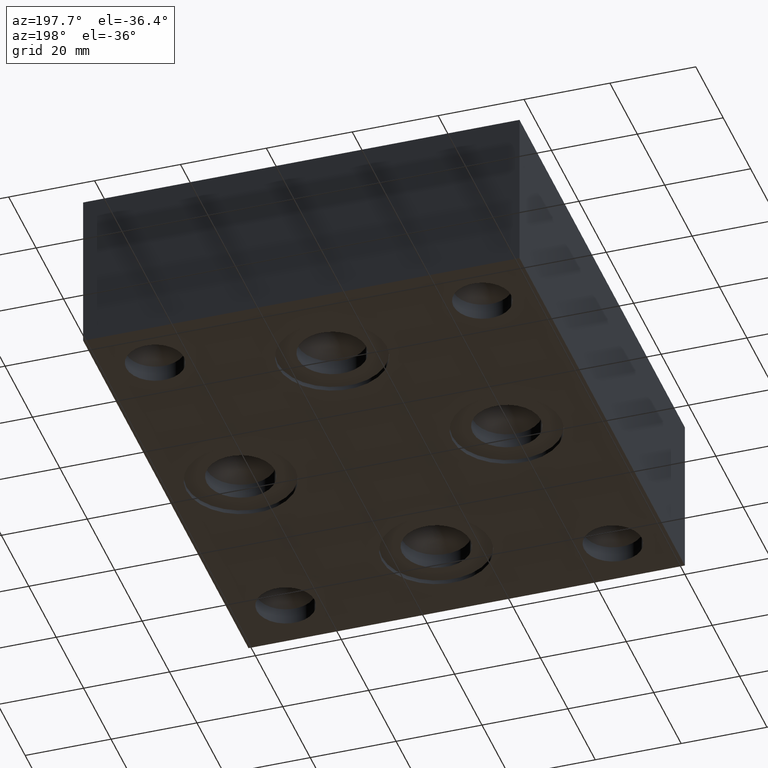
[diagram: clean part render]
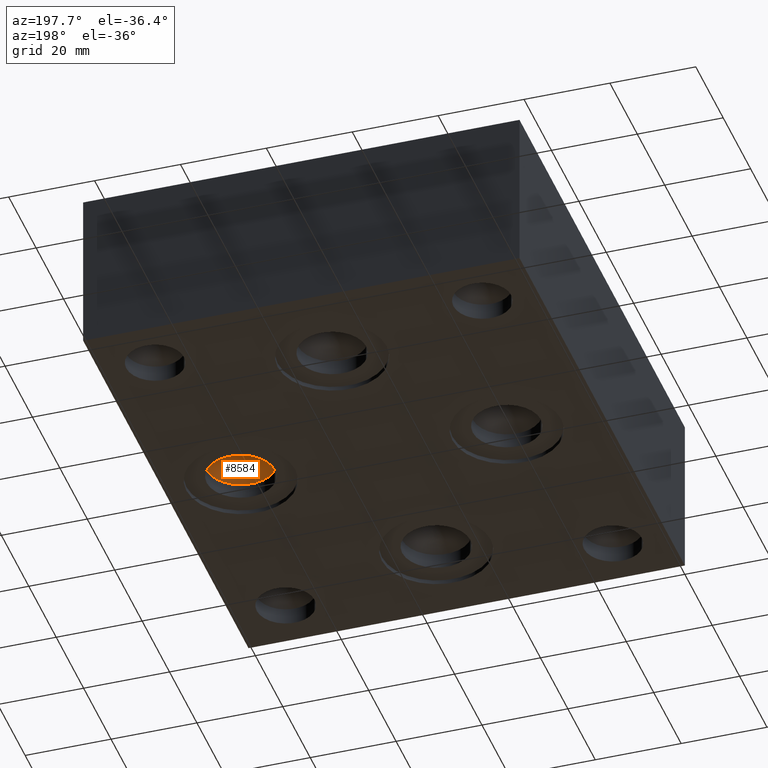
[diagram: same view with one face highlighted and labeled with its STEP entity id]
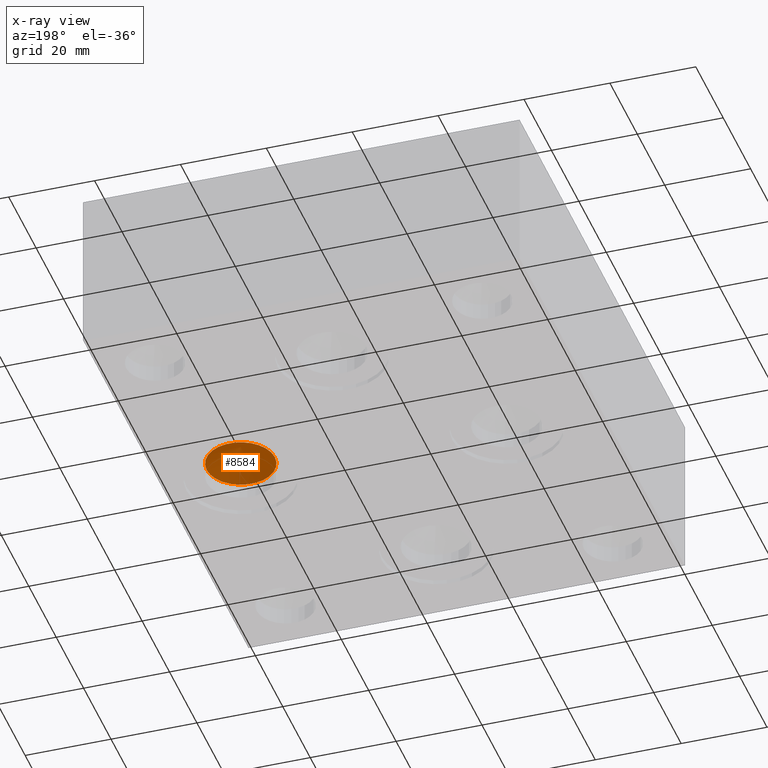
[diagram: x-ray of the same camera — body ghosted, the highlighted face saturated]
A machine part, auxiliary view. The second image highlights one B-rep face of the part: STEP entity #8584.
The next image is the same camera in x-ray: the body ghosted, the highlighted face saturated — about 0% of this face is hidden behind the body in this view.
In plain terms, the highlighted conical surface has half-angle 60 deg.
Its self-contained STEP definition (entity closure, byte-faithful):
#17=CONICAL_SURFACE('',#8942,3.96875,1.0471975511966);
#60=CIRCLE('',#8943,7.9375);
#61=CIRCLE('',#8944,7.9375);
#994=FACE_OUTER_BOUND('',#1471,.T.);
#1471=EDGE_LOOP('',(#7282,#7283,#7284,#7285));
#2332=LINE('',#14495,#3159);
#3159=VECTOR('',#10447,3.96875);
#3912=VERTEX_POINT('',#14491);
#3913=VERTEX_POINT('',#14492);
#3914=VERTEX_POINT('',#14494);
#5068=EDGE_CURVE('',#3912,#3913,#60,.T.);
#5069=EDGE_CURVE('',#3913,#3914,#2332,.T.);
#5070=EDGE_CURVE('',#3913,#3912,#61,.T.);
#7282=ORIENTED_EDGE('',*,*,#5068,.T.);
#7283=ORIENTED_EDGE('',*,*,#5069,.T.);
#7284=ORIENTED_EDGE('',*,*,#5069,.F.);
#7285=ORIENTED_EDGE('',*,*,#5070,.T.);
#8584=ADVANCED_FACE('',(#994),#17,.F.);
#8942=AXIS2_PLACEMENT_3D('',#14490,#10443,#10444);
#8943=AXIS2_PLACEMENT_3D('',#14493,#10445,#10446);
#8944=AXIS2_PLACEMENT_3D('',#14496,#10448,#10449);
#10443=DIRECTION('center_axis',(0.,0.,-1.));
#10444=DIRECTION('ref_axis',(1.,0.,0.));
#10445=DIRECTION('center_axis',(0.,0.,-1.));
#10446=DIRECTION('ref_axis',(1.,0.,0.));
#10447=DIRECTION('',(0.866025403784439,-1.06057523872491E-16,0.5));
#10448=DIRECTION('center_axis',(0.,0.,-1.));
#10449=DIRECTION('ref_axis',(1.,0.,0.));
#14490=CARTESIAN_POINT('Origin',(84.1502,60.3504,6.87407888084633));
#14491=CARTESIAN_POINT('',(92.0877,60.3504,4.58272));
#14492=CARTESIAN_POINT('',(76.2127,60.3504,4.58272));
#14493=CARTESIAN_POINT('Origin',(84.1502,60.3504,4.58272));
#14494=CARTESIAN_POINT('',(84.1502,60.3504,9.16543776169266));
#14495=CARTESIAN_POINT('',(80.18145,60.3504,6.87407888084633));
#14496=CARTESIAN_POINT('Origin',(84.1502,60.3504,4.58272));